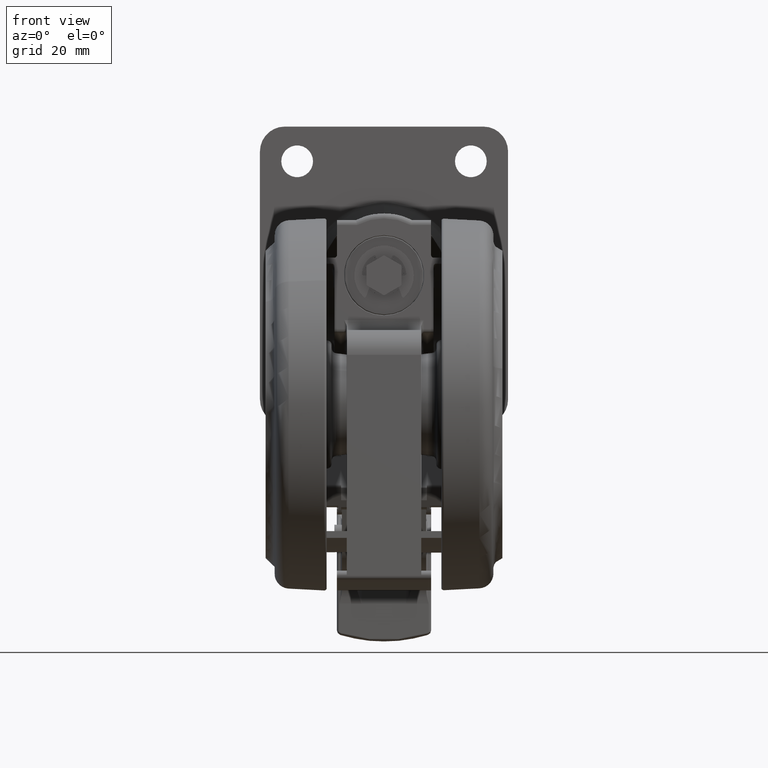
[diagram: clean part render]
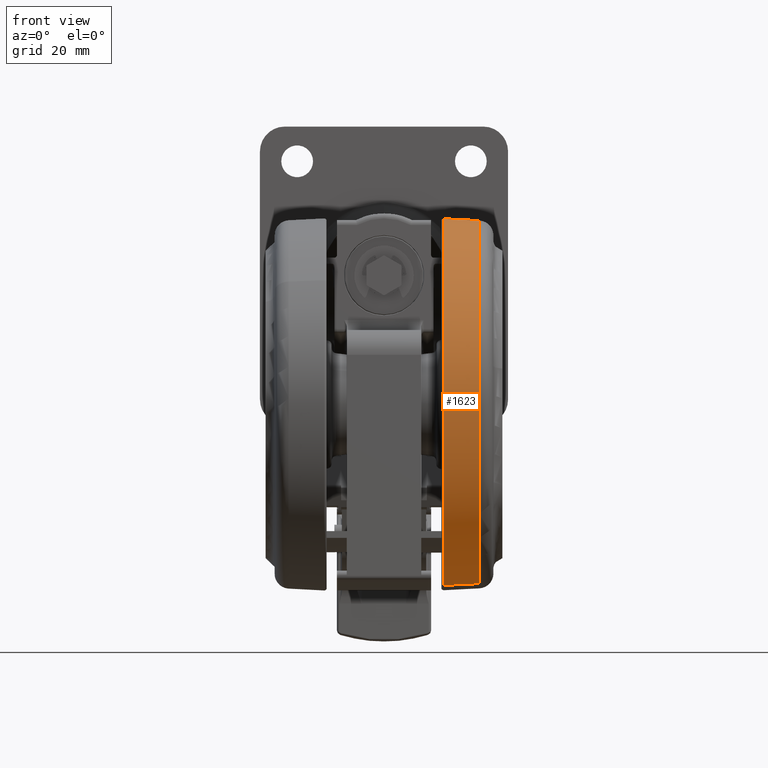
[diagram: same view with one face highlighted and labeled with its STEP entity id]
A machine part, front view. The second image highlights one B-rep face of the part: STEP entity #1623.
In plain terms, the highlighted conical surface has half-angle 3 deg.
Its self-contained STEP definition (entity closure, byte-faithful):
#927 = VERTEX_POINT ( 'NONE', #65239 ) ;
#986 = LINE ( 'NONE', #56005, #29671 ) ;
#1623 = ADVANCED_FACE ( 'NONE', ( #30291 ), #43831, .T. ) ;
#3012 = DIRECTION ( 'NONE',  ( -2.664535259100375300E-015, 1.000000000000000000, 0.0000000000000000000 ) ) ;
#11187 = DIRECTION ( 'NONE',  ( 0.0000000000000000000, 0.0000000000000000000, -1.000000000000000000 ) ) ;
#13346 = CARTESIAN_POINT ( 'NONE',  ( -9.063470990525218700E-014, 37.50000000000000700, -11.77383202187847600 ) ) ;
#13979 = ORIENTED_EDGE ( 'NONE', *, *, #33498, .F. ) ;
#14186 = CARTESIAN_POINT ( 'NONE',  ( -8.959317602467220800E-014, 37.12628851691040000, -4.642992131271127800 ) ) ;
#15763 = VERTEX_POINT ( 'NONE', #13346 ) ;
#16936 = DIRECTION ( 'NONE',  ( 2.664535259100375300E-015, -1.000000000000000000, 0.0000000000000000000 ) ) ;
#20833 = CIRCLE ( 'NONE', #25411, 37.50000000000000700 ) ;
#25411 = AXIS2_PLACEMENT_3D ( 'NONE', #30803, #70971, #36612 ) ;
#27176 = VECTOR ( 'NONE', #31507, 1000.000000000000100 ) ;
#29671 = VECTOR ( 'NONE', #67828, 1000.000000000000100 ) ;
#30291 = FACE_OUTER_BOUND ( 'NONE', #38734, .T. ) ;
#30791 = AXIS2_PLACEMENT_3D ( 'NONE', #71766, #37382, #3012 ) ;
#30803 = CARTESIAN_POINT ( 'NONE',  ( 1.387778780781445700E-014, 0.0000000000000000000, -11.77383202187847600 ) ) ;
#31507 = DIRECTION ( 'NONE',  ( -1.458603068573637700E-016, 0.05233595624293731200, -0.9986295347545742800 ) ) ;
#33498 = EDGE_CURVE ( 'NONE', #70859, #927, #72660, .T. ) ;
#35221 = CARTESIAN_POINT ( 'NONE',  ( 1.082554335610100500E-013, -37.12628851691040000, -4.642992131271127800 ) ) ;
#35322 = AXIS2_PLACEMENT_3D ( 'NONE', #57062, #11187, #16936 ) ;
#36016 = ORIENTED_EDGE ( 'NONE', *, *, #38298, .F. ) ;
#36612 = DIRECTION ( 'NONE',  ( -2.664535259100374900E-015, 1.000000000000000000, 0.0000000000000000000 ) ) ;
#37382 = DIRECTION ( 'NONE',  ( 0.0000000000000000000, 0.0000000000000000000, 1.000000000000000000 ) ) ;
#38298 = EDGE_CURVE ( 'NONE', #927, #15763, #73027, .T. ) ;
#38734 = EDGE_LOOP ( 'NONE', ( #36016, #13979, #54793, #66867 ) ) ;
#38909 = CARTESIAN_POINT ( 'NONE',  ( 1.137978600240785500E-013, -37.50000000000000700, -11.77383202187847600 ) ) ;
#43831 = CONICAL_SURFACE ( 'NONE', #35322, 37.12628851691040000, 0.05235987755982334000 ) ;
#44989 = EDGE_CURVE ( 'NONE', #70859, #65590, #986, .T. ) ;
#48543 = EDGE_CURVE ( 'NONE', #65590, #15763, #20833, .T. ) ;
#54793 = ORIENTED_EDGE ( 'NONE', *, *, #44989, .T. ) ;
#56005 = CARTESIAN_POINT ( 'NONE',  ( 1.128020926006555900E-013, -37.12628851691040000, -4.642992131271127800 ) ) ;
#57062 = CARTESIAN_POINT ( 'NONE',  ( 1.387778780781445700E-014, 0.0000000000000000000, -4.642992131271127800 ) ) ;
#65239 = CARTESIAN_POINT ( 'NONE',  ( -8.504651698502665400E-014, 37.12628851691040000, -4.642992131271127800 ) ) ;
#65590 = VERTEX_POINT ( 'NONE', #38909 ) ;
#66867 = ORIENTED_EDGE ( 'NONE', *, *, #48543, .T. ) ;
#67828 = DIRECTION ( 'NONE',  ( 1.394510007280408600E-016, -0.05233595624293731200, -0.9986295347545742800 ) ) ;
#70859 = VERTEX_POINT ( 'NONE', #35221 ) ;
#70971 = DIRECTION ( 'NONE',  ( 0.0000000000000000000, 0.0000000000000000000, 1.000000000000000000 ) ) ;
#71766 = CARTESIAN_POINT ( 'NONE',  ( 1.387778780781445700E-014, 0.0000000000000000000, -4.642992131271127800 ) ) ;
#72660 = CIRCLE ( 'NONE', #30791, 37.12628851691040000 ) ;
#73027 = LINE ( 'NONE', #14186, #27176 ) ;